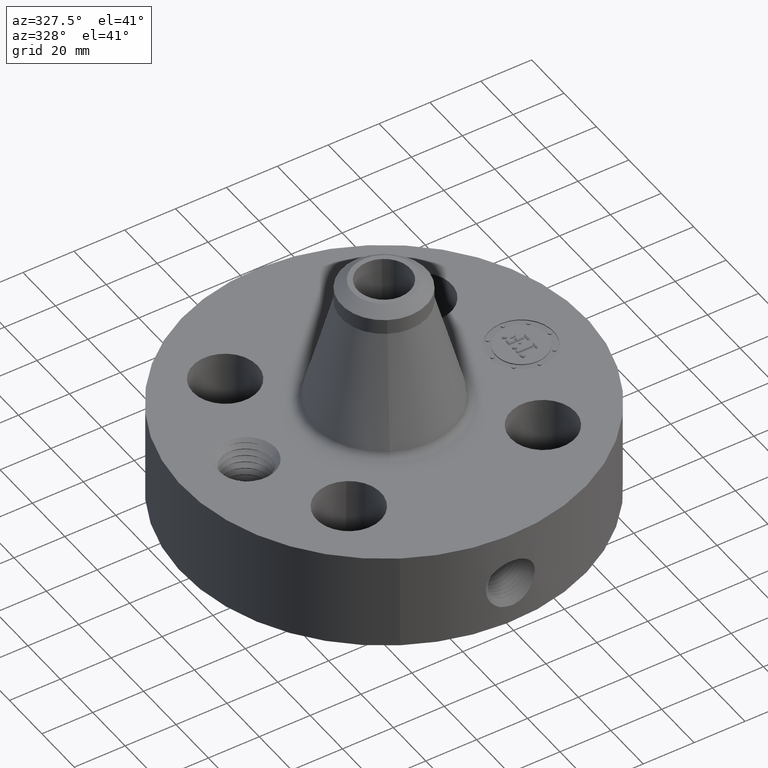
[diagram: clean part render]
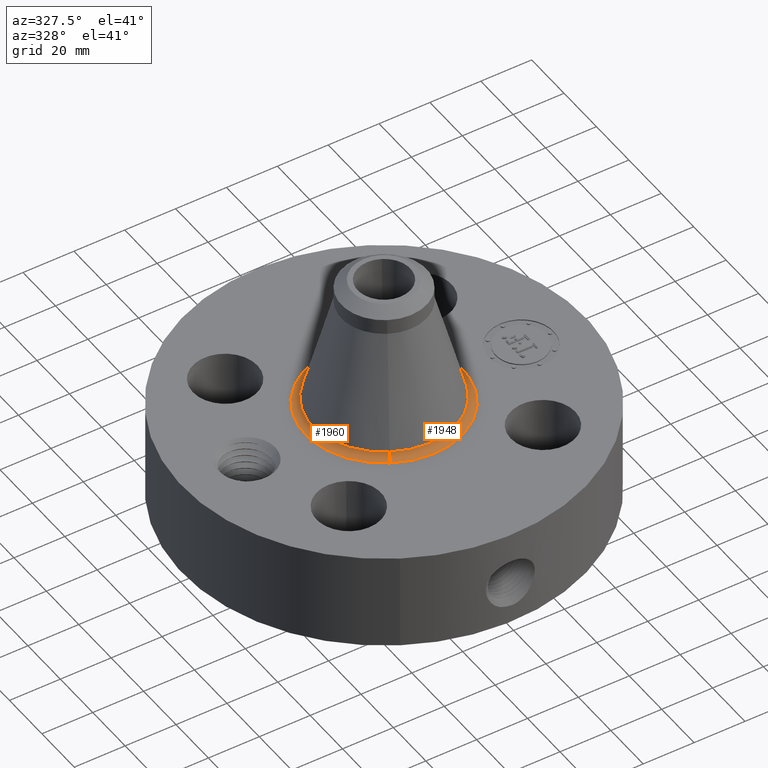
[diagram: same view with one multi-face feature highlighted, each face labeled with its STEP entity id]
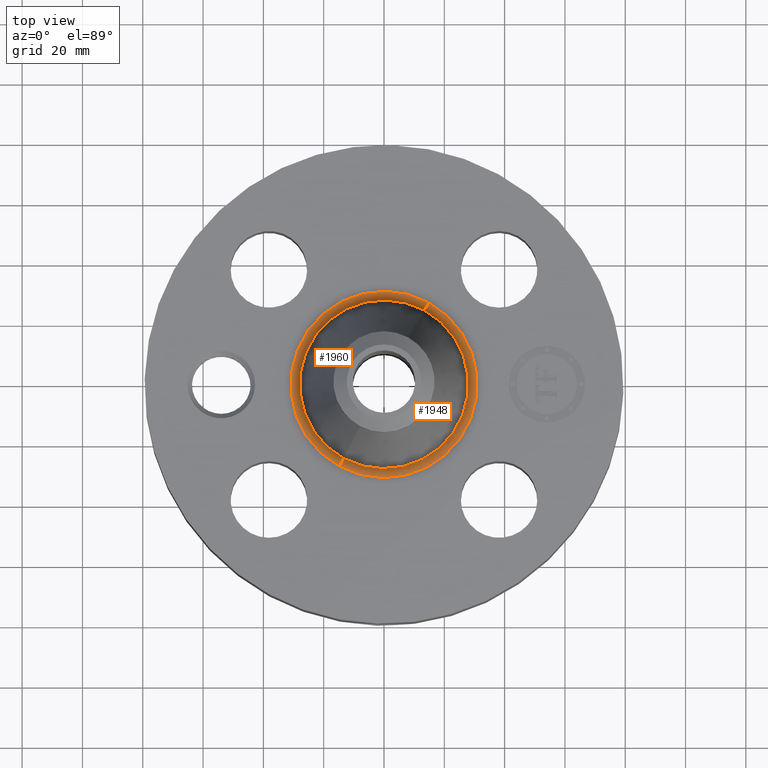
[diagram: same view with one multi-face feature highlighted, each face labeled with its STEP entity id]
A machine part, auxiliary view. The highlighted faces form ONE feature: a constant-radius fillet chain: 2 tangent blend faces with common blend radius 3.048 mm. The faces share edges in the B-rep.
A second angle (top view) of the same feature is appended — it is thin or edge-on in the first view.
Their STEP definitions:
[1] entity #1960 (Torus):
#487=AXIS2_PLACEMENT_3D('Circle Axis2P3D',#485,#486,$) ;
#1921=AXIS2_PLACEMENT_3D('Torus Axis2P3D',#1918,#1919,#1920) ;
#1925=AXIS2_PLACEMENT_3D('Circle Axis2P3D',#1923,#1924,$) ;
#1939=AXIS2_PLACEMENT_3D('Circle Axis2P3D',#1937,#1938,$) ;
#1951=AXIS2_PLACEMENT_3D('Circle Axis2P3D',#1949,#1950,$) ;
#485=CARTESIAN_POINT('Axis2P3D Location',(0.,0.,1.75000000001)) ;
#489=CARTESIAN_POINT('Vertex',(-0.583597211263,-1.06826752964,1.75000000001)) ;
#491=CARTESIAN_POINT('Vertex',(0.583597211263,1.06826752964,1.75000000001)) ;
#1918=CARTESIAN_POINT('Axis2P3D Location',(0.,0.,1.87000000001)) ;
#1923=CARTESIAN_POINT('Axis2P3D Location',(0.583597211263,1.06826752964,1.87000000001)) ;
#1927=CARTESIAN_POINT('Vertex',(0.527994584647,0.966487604326,1.83919099619)) ;
#1934=CARTESIAN_POINT('Vertex',(-0.527994584647,-0.966487604326,1.83919099619)) ;
#1937=CARTESIAN_POINT('Axis2P3D Location',(-0.583597211263,-1.06826752964,1.87000000001)) ;
#1949=CARTESIAN_POINT('Axis2P3D Location',(0.,0.,1.83919099619)) ;
#486=DIRECTION('Axis2P3D Direction',(0.,0.,-0.0393700787402)) ;
#1919=DIRECTION('Axis2P3D Direction',(0.,0.,-0.0393700787402)) ;
#1920=DIRECTION('Axis2P3D XDirection',(-0.0188750212049,-0.0345504945626,0.)) ;
#1924=DIRECTION('Axis2P3D Direction',(-0.0345504945626,0.0188750212049,0.)) ;
#1938=DIRECTION('Axis2P3D Direction',(0.0345504945626,-0.0188750212049,0.)) ;
#1950=DIRECTION('Axis2P3D Direction',(0.,0.,-0.0393700787402)) ;
#1955=ORIENTED_EDGE('',*,*,#493,.F.) ;
#1956=ORIENTED_EDGE('',*,*,#1941,.T.) ;
#1957=ORIENTED_EDGE('',*,*,#1953,.T.) ;
#1958=ORIENTED_EDGE('',*,*,#1929,.F.) ;
#1960=ADVANCED_FACE('PartBody',(#1959),#1922,.F.) ;
#488=CIRCLE('generated circle',#487,1.21728436279) ;
#1926=CIRCLE('generated circle',#1925,0.12) ;
#1940=CIRCLE('generated circle',#1939,0.12) ;
#1952=CIRCLE('generated circle',#1951,1.10130675596) ;
#1922=TOROIDAL_SURFACE('homeo Torus',#1921,1.21728436279,0.12) ;
#493=EDGE_CURVE('',#490,#492,#488,.T.) ;
#1929=EDGE_CURVE('',#492,#1928,#1926,.T.) ;
#1941=EDGE_CURVE('',#490,#1935,#1940,.T.) ;
#1953=EDGE_CURVE('',#1935,#1928,#1952,.T.) ;
#1954=EDGE_LOOP('',(#1955,#1956,#1957,#1958)) ;
#1959=FACE_OUTER_BOUND('',#1954,.T.) ;
#490=VERTEX_POINT('',#489) ;
#492=VERTEX_POINT('',#491) ;
#1928=VERTEX_POINT('',#1927) ;
#1935=VERTEX_POINT('',#1934) ;
[2] entity #1948 (Torus):
#496=AXIS2_PLACEMENT_3D('Circle Axis2P3D',#494,#495,$) ;
#1921=AXIS2_PLACEMENT_3D('Torus Axis2P3D',#1918,#1919,#1920) ;
#1925=AXIS2_PLACEMENT_3D('Circle Axis2P3D',#1923,#1924,$) ;
#1932=AXIS2_PLACEMENT_3D('Circle Axis2P3D',#1930,#1931,$) ;
#1939=AXIS2_PLACEMENT_3D('Circle Axis2P3D',#1937,#1938,$) ;
#489=CARTESIAN_POINT('Vertex',(-0.583597211263,-1.06826752964,1.75000000001)) ;
#491=CARTESIAN_POINT('Vertex',(0.583597211263,1.06826752964,1.75000000001)) ;
#494=CARTESIAN_POINT('Axis2P3D Location',(0.,0.,1.75000000001)) ;
#1918=CARTESIAN_POINT('Axis2P3D Location',(0.,0.,1.87000000001)) ;
#1923=CARTESIAN_POINT('Axis2P3D Location',(0.583597211263,1.06826752964,1.87000000001)) ;
#1927=CARTESIAN_POINT('Vertex',(0.527994584647,0.966487604326,1.83919099619)) ;
#1930=CARTESIAN_POINT('Axis2P3D Location',(0.,0.,1.83919099619)) ;
#1934=CARTESIAN_POINT('Vertex',(-0.527994584647,-0.966487604326,1.83919099619)) ;
#1937=CARTESIAN_POINT('Axis2P3D Location',(-0.583597211263,-1.06826752964,1.87000000001)) ;
#495=DIRECTION('Axis2P3D Direction',(0.,0.,-0.0393700787402)) ;
#1919=DIRECTION('Axis2P3D Direction',(0.,0.,-0.0393700787402)) ;
#1920=DIRECTION('Axis2P3D XDirection',(-0.0188750212049,-0.0345504945626,0.)) ;
#1924=DIRECTION('Axis2P3D Direction',(-0.0345504945626,0.0188750212049,0.)) ;
#1931=DIRECTION('Axis2P3D Direction',(0.,0.,-0.0393700787402)) ;
#1938=DIRECTION('Axis2P3D Direction',(0.0345504945626,-0.0188750212049,0.)) ;
#1943=ORIENTED_EDGE('',*,*,#498,.F.) ;
#1944=ORIENTED_EDGE('',*,*,#1929,.T.) ;
#1945=ORIENTED_EDGE('',*,*,#1936,.T.) ;
#1946=ORIENTED_EDGE('',*,*,#1941,.F.) ;
#1948=ADVANCED_FACE('PartBody',(#1947),#1922,.F.) ;
#497=CIRCLE('generated circle',#496,1.21728436279) ;
#1926=CIRCLE('generated circle',#1925,0.12) ;
#1933=CIRCLE('generated circle',#1932,1.10130675596) ;
#1940=CIRCLE('generated circle',#1939,0.12) ;
#1922=TOROIDAL_SURFACE('homeo Torus',#1921,1.21728436279,0.12) ;
#498=EDGE_CURVE('',#492,#490,#497,.T.) ;
#1929=EDGE_CURVE('',#492,#1928,#1926,.T.) ;
#1936=EDGE_CURVE('',#1928,#1935,#1933,.T.) ;
#1941=EDGE_CURVE('',#490,#1935,#1940,.T.) ;
#1942=EDGE_LOOP('',(#1943,#1944,#1945,#1946)) ;
#1947=FACE_OUTER_BOUND('',#1942,.T.) ;
#490=VERTEX_POINT('',#489) ;
#492=VERTEX_POINT('',#491) ;
#1928=VERTEX_POINT('',#1927) ;
#1935=VERTEX_POINT('',#1934) ;